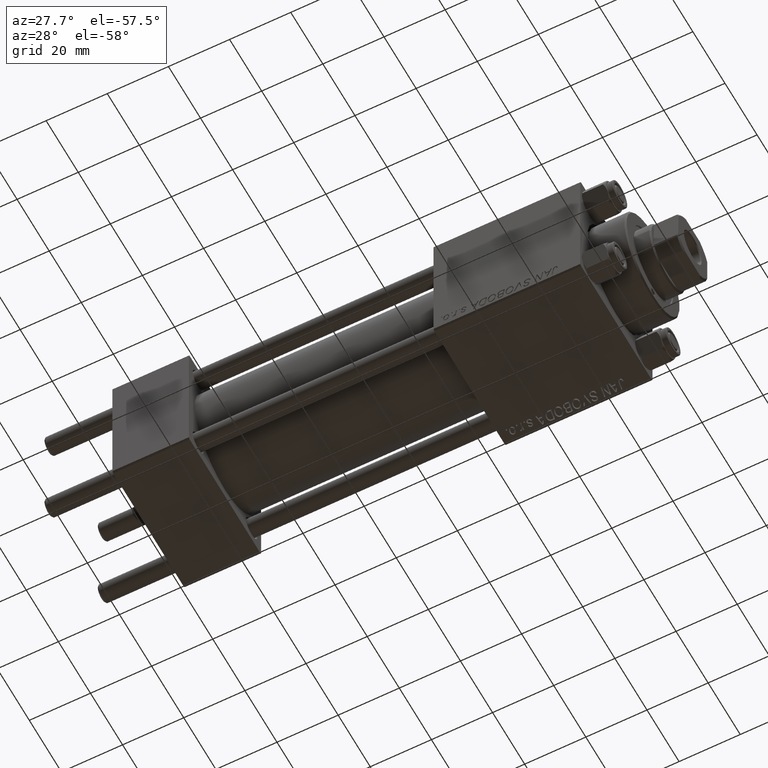
[diagram: clean part render]
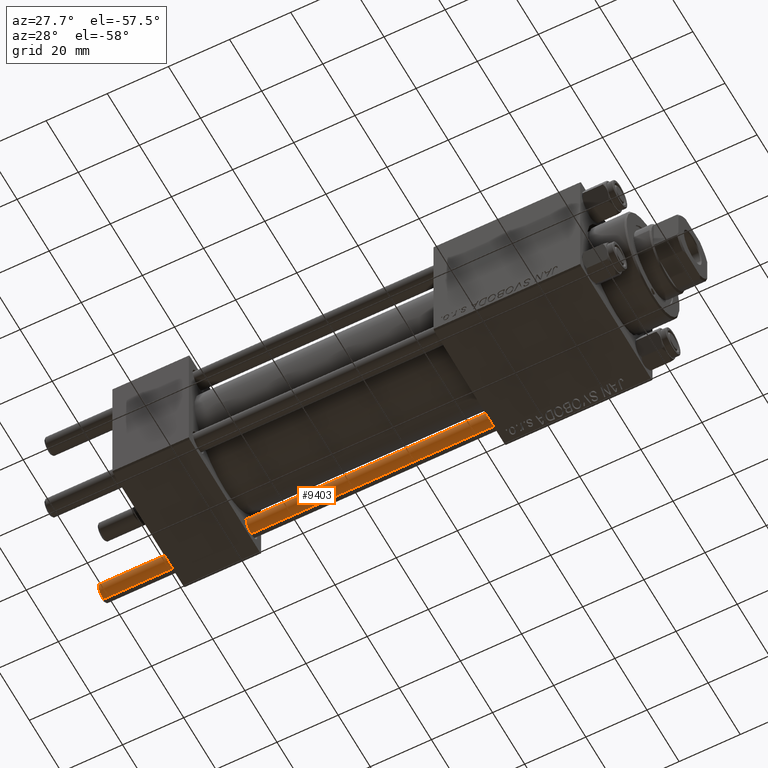
[diagram: same view with one face highlighted and labeled with its STEP entity id]
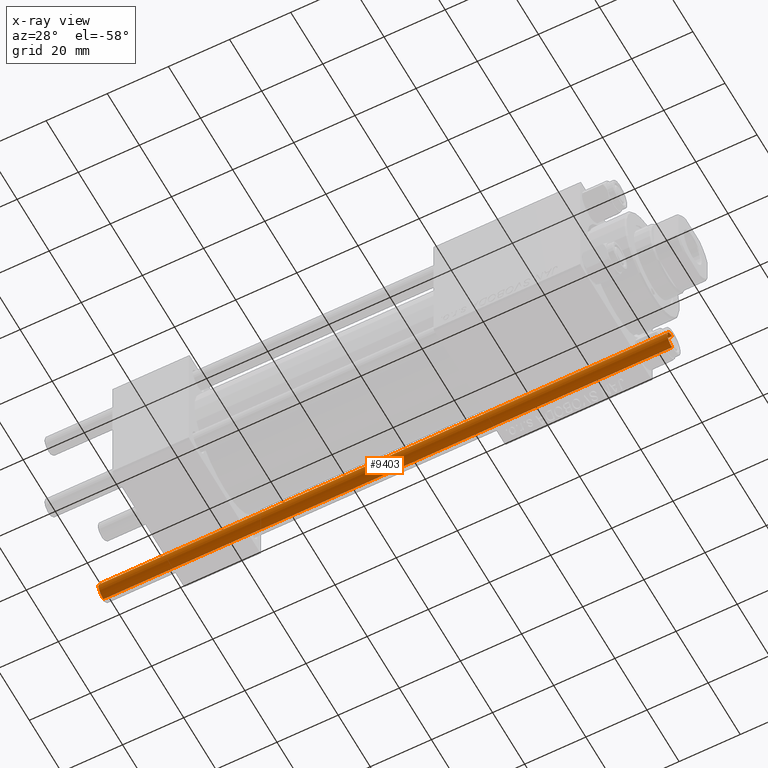
[diagram: x-ray of the same camera — body ghosted, the highlighted face saturated]
A machine part, auxiliary view. The second image highlights one B-rep face of the part: STEP entity #9403.
The next image is the same camera in x-ray: the body ghosted, the highlighted face saturated — about 0% of this face is hidden behind the body in this view.
In plain terms, the highlighted cylindrical surface (edge-blend (fillet) strip) has radius 3 mm, axis along (1, 0, -0).
Its self-contained STEP definition (entity closure, byte-faithful):
#3175 = DIRECTION ( 'NONE',  ( 0.000000000000000000, 0.000000000000000000, -1.000000000000000000 ) ) ;
#3517 = LINE ( 'NONE', #34395, #4183 ) ;
#4098 = EDGE_CURVE ( 'NONE', #23435, #20357, #17440, .T. ) ;
#4175 = ORIENTED_EDGE ( 'NONE', *, *, #30504, .T. ) ;
#4183 = VECTOR ( 'NONE', #10367, 1000.000000000000000 ) ;
#6079 = AXIS2_PLACEMENT_3D ( 'NONE', #27196, #49760, #42636 ) ;
#6237 = ORIENTED_EDGE ( 'NONE', *, *, #45824, .F. ) ;
#8664 = VERTEX_POINT ( 'NONE', #14444 ) ;
#9403 = ADVANCED_FACE ( 'NONE', ( #10534 ), #22410, .T. ) ;
#10367 = DIRECTION ( 'NONE',  ( -0.000000000000000000, -0.000000000000000000, -1.000000000000000000 ) ) ;
#10516 = DIRECTION ( 'NONE',  ( 1.000000000000000000, 0.000000000000000000, 0.000000000000000000 ) ) ;
#10534 = FACE_OUTER_BOUND ( 'NONE', #44451, .T. ) ;
#14444 = CARTESIAN_POINT ( 'NONE',  ( 3.000000000000000444, 3.673940397442060361E-16, 0.5000000000000281997 ) ) ;
#14557 = DIRECTION ( 'NONE',  ( -0.000000000000000000, -0.000000000000000000, -1.000000000000000000 ) ) ;
#15572 = ORIENTED_EDGE ( 'NONE', *, *, #42827, .T. ) ;
#16242 = VECTOR ( 'NONE', #19704, 1000.000000000000000 ) ;
#16392 = LINE ( 'NONE', #27045, #16242 ) ;
#17440 = CIRCLE ( 'NONE', #23886, 3.000000000000000444 ) ;
#19704 = DIRECTION ( 'NONE',  ( -0.000000000000000000, -0.000000000000000000, -1.000000000000000000 ) ) ;
#20357 = VERTEX_POINT ( 'NONE', #33729 ) ;
#22140 = CARTESIAN_POINT ( 'NONE',  ( 0.000000000000000000, 0.000000000000000000, 186.5000000000000568 ) ) ;
#22410 = CYLINDRICAL_SURFACE ( 'NONE', #45125, 3.000000000000000444 ) ;
#22653 = DIRECTION ( 'NONE',  ( -1.000000000000000000, 0.000000000000000000, 0.000000000000000000 ) ) ;
#23435 = VERTEX_POINT ( 'NONE', #29178 ) ;
#23819 = VERTEX_POINT ( 'NONE', #29866 ) ;
#23886 = AXIS2_PLACEMENT_3D ( 'NONE', #22140, #3175, #10516 ) ;
#27045 = CARTESIAN_POINT ( 'NONE',  ( 3.000000000000000444, 3.673940397442060361E-16, 187.0000000000000000 ) ) ;
#27196 = CARTESIAN_POINT ( 'NONE',  ( 0.000000000000000000, 0.000000000000000000, 0.5000000000000281997 ) ) ;
#29178 = CARTESIAN_POINT ( 'NONE',  ( 3.000000000000000444, 3.673940397442060361E-16, 186.5000000000000568 ) ) ;
#29866 = CARTESIAN_POINT ( 'NONE',  ( -3.000000000000000444, 0.000000000000000000, 0.5000000000000281997 ) ) ;
#30504 = EDGE_CURVE ( 'NONE', #20357, #23819, #3517, .T. ) ;
#33729 = CARTESIAN_POINT ( 'NONE',  ( -3.000000000000000444, 0.000000000000000000, 186.5000000000000568 ) ) ;
#34395 = CARTESIAN_POINT ( 'NONE',  ( -3.000000000000000444, 0.000000000000000000, 187.0000000000000000 ) ) ;
#39012 = ORIENTED_EDGE ( 'NONE', *, *, #4098, .T. ) ;
#42636 = DIRECTION ( 'NONE',  ( 1.000000000000000000, 0.000000000000000000, 0.000000000000000000 ) ) ;
#42827 = EDGE_CURVE ( 'NONE', #23819, #8664, #49708, .T. ) ;
#44451 = EDGE_LOOP ( 'NONE', ( #6237, #39012, #4175, #15572 ) ) ;
#45125 = AXIS2_PLACEMENT_3D ( 'NONE', #45939, #14557, #22653 ) ;
#45824 = EDGE_CURVE ( 'NONE', #23435, #8664, #16392, .T. ) ;
#45939 = CARTESIAN_POINT ( 'NONE',  ( 0.000000000000000000, 0.000000000000000000, 187.0000000000000000 ) ) ;
#49708 = CIRCLE ( 'NONE', #6079, 3.000000000000000444 ) ;
#49760 = DIRECTION ( 'NONE',  ( -0.000000000000000000, -0.000000000000000000, 1.000000000000000000 ) ) ;